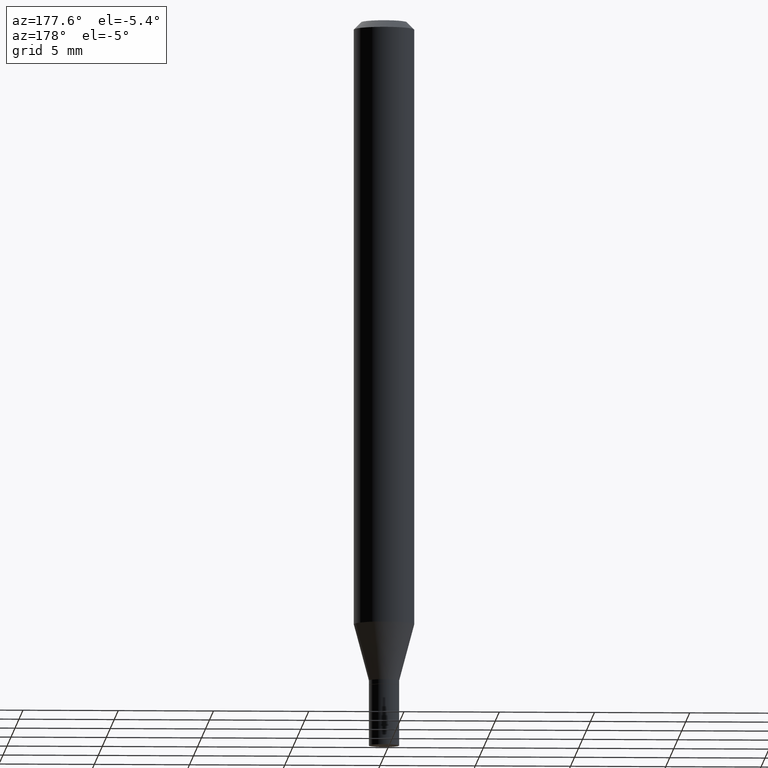
[diagram: clean part render]
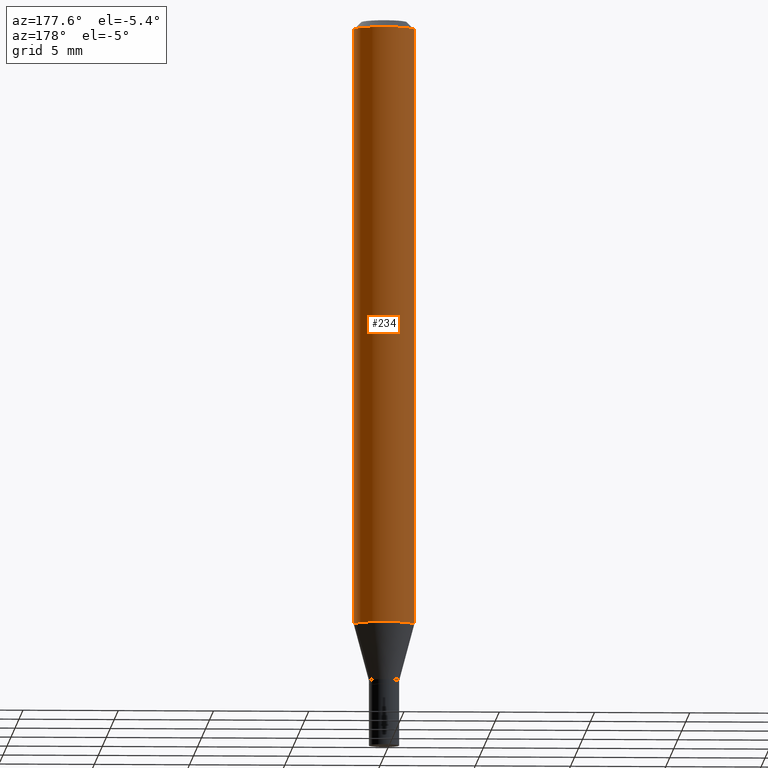
[diagram: same view with one face highlighted and labeled with its STEP entity id]
A machine part, auxiliary view. The second image highlights one B-rep face of the part: STEP entity #234.
In plain terms, the highlighted cylindrical surface (edge-blend (fillet) strip) has radius 1.5875 mm, axis along (-0, 0, 1).
Its self-contained STEP definition (entity closure, byte-faithful):
#4 = ORIENTED_EDGE ( 'NONE', *, *, #430, .T. ) ;
#14 = DIRECTION ( 'NONE',  ( -2.445468806185136597E-29, 3.491481338843145583E-15, 1.000000000000000000 ) ) ;
#46 = CARTESIAN_POINT ( 'NONE',  ( 0.000000000000000000, 0.000000000000000000, 0.000000000000000000 ) ) ;
#48 = DIRECTION ( 'NONE',  ( 1.000000000000000000, -6.982962677686266711E-15, 4.876176775795935793E-29 ) ) ;
#50 = CARTESIAN_POINT ( 'NONE',  ( -0.06250000000000000000, -1.761433136604187439E-15, -0.01499999999999999944 ) ) ;
#83 = VECTOR ( 'NONE', #296, 39.37007874015748143 ) ;
#84 = DIRECTION ( 'NONE',  ( -2.445468806185136597E-29, 3.491481338843145583E-15, 1.000000000000000000 ) ) ;
#85 = CIRCLE ( 'NONE', #172, 0.06250000000000000000 ) ;
#87 = DIRECTION ( 'NONE',  ( -2.445468806185136877E-29, 3.491481338843145188E-15, 1.000000000000000000 ) ) ;
#99 = DIRECTION ( 'NONE',  ( -2.445468806185136597E-29, 3.491481338843145583E-15, 1.000000000000000000 ) ) ;
#110 = CARTESIAN_POINT ( 'NONE',  ( -0.06250000000000000000, -3.914583262975789231E-15, -1.248373412263471760 ) ) ;
#114 = EDGE_LOOP ( 'NONE', ( #4, #425, #153, #140 ) ) ;
#120 = FACE_OUTER_BOUND ( 'NONE', #114, .T. ) ;
#132 = CARTESIAN_POINT ( 'NONE',  ( 3.052858238161217332E-29, -4.358672472825852637E-15, -1.248373412263471760 ) ) ;
#140 = ORIENTED_EDGE ( 'NONE', *, *, #224, .F. ) ;
#146 = VECTOR ( 'NONE', #87, 39.37007874015748143 ) ;
#153 = ORIENTED_EDGE ( 'NONE', *, *, #446, .F. ) ;
#155 = CARTESIAN_POINT ( 'NONE',  ( 0.06250000000000000000, -4.795107640181243517E-15, -1.248373412263471760 ) ) ;
#156 = CARTESIAN_POINT ( 'NONE',  ( 3.668203209277705088E-31, -5.237222008264718399E-17, -0.01499999999999999944 ) ) ;
#160 = LINE ( 'NONE', #311, #146 ) ;
#164 = AXIS2_PLACEMENT_3D ( 'NONE', #132, #99, #247 ) ;
#165 = VERTEX_POINT ( 'NONE', #110 ) ;
#172 = AXIS2_PLACEMENT_3D ( 'NONE', #156, #14, #445 ) ;
#200 = AXIS2_PLACEMENT_3D ( 'NONE', #46, #84, #48 ) ;
#224 = EDGE_CURVE ( 'NONE', #246, #251, #362, .T. ) ;
#230 = CYLINDRICAL_SURFACE ( 'NONE', #200, 0.06250000000000000000 ) ;
#234 = ADVANCED_FACE ( 'NONE', ( #120 ), #230, .T. ) ;
#242 = CARTESIAN_POINT ( 'NONE',  ( 0.06250000000000000000, -4.364351673553916694E-16, 3.047610484872459871E-30 ) ) ;
#246 = VERTEX_POINT ( 'NONE', #155 ) ;
#247 = DIRECTION ( 'NONE',  ( 1.000000000000000000, -6.982962677686270655E-15, 0.000000000000000000 ) ) ;
#251 = VERTEX_POINT ( 'NONE', #302 ) ;
#296 = DIRECTION ( 'NONE',  ( -2.445468806185136877E-29, 3.491481338843145188E-15, 1.000000000000000000 ) ) ;
#302 = CARTESIAN_POINT ( 'NONE',  ( 0.06250000000000000000, -4.888073874380388472E-16, -0.01499999999999999944 ) ) ;
#308 = VERTEX_POINT ( 'NONE', #50 ) ;
#311 = CARTESIAN_POINT ( 'NONE',  ( -0.06250000000000000000, 4.440892098500626162E-16, -3.074334431409316114E-30 ) ) ;
#362 = LINE ( 'NONE', #242, #83 ) ;
#382 = CIRCLE ( 'NONE', #164, 0.06250000000000000000 ) ;
#401 = EDGE_CURVE ( 'NONE', #165, #308, #160, .T. ) ;
#425 = ORIENTED_EDGE ( 'NONE', *, *, #401, .T. ) ;
#430 = EDGE_CURVE ( 'NONE', #246, #165, #382, .T. ) ;
#445 = DIRECTION ( 'NONE',  ( 1.000000000000000000, -6.982962677686266711E-15, 0.000000000000000000 ) ) ;
#446 = EDGE_CURVE ( 'NONE', #251, #308, #85, .T. ) ;